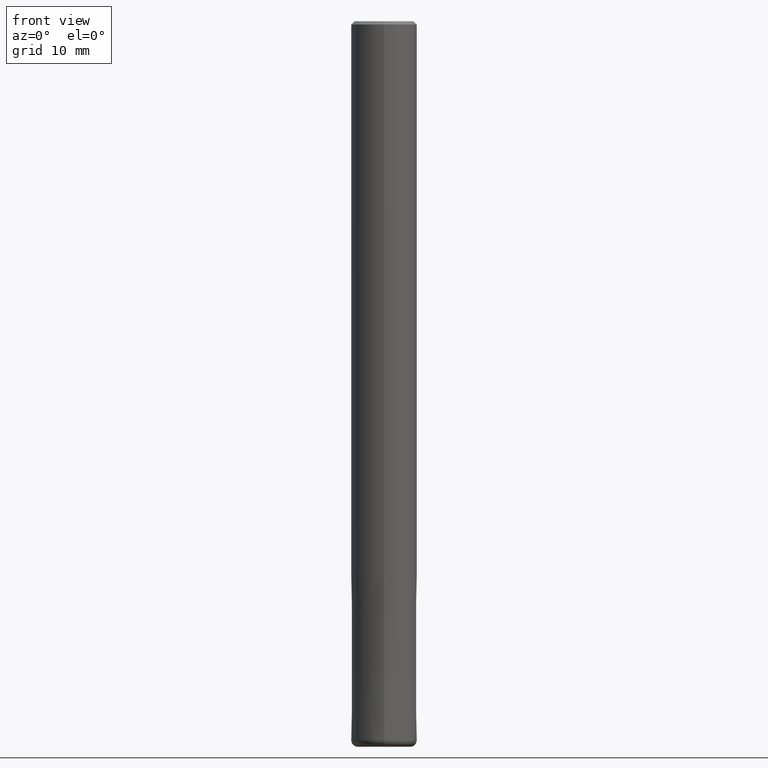
[diagram: clean part render]
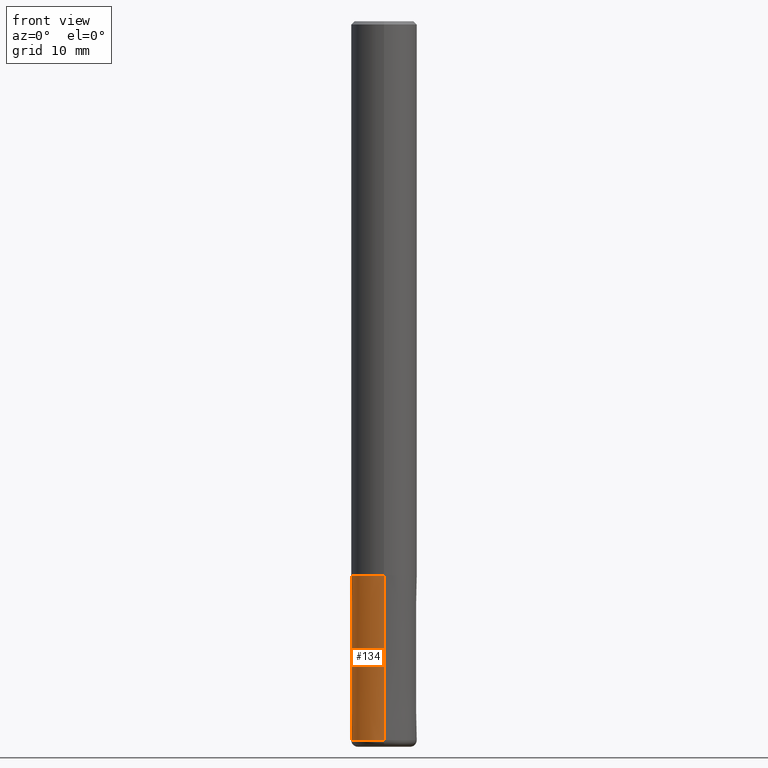
[diagram: same view with one face highlighted and labeled with its STEP entity id]
A machine part, front view. The second image highlights one B-rep face of the part: STEP entity #134.
In plain terms, the highlighted conical surface has half-angle 0 deg.
Its self-contained STEP definition (entity closure, byte-faithful):
#76=EDGE_CURVE('',#102,#94,#182,.T.);
#82=VERTEX_POINT('',#189);
#94=VERTEX_POINT('',#205);
#102=VERTEX_POINT('',#213);
#108=EDGE_CURVE('',#82,#94,#219,.T.);
#114=VERTEX_POINT('',#225);
#130=EDGE_CURVE('',#102,#114,#245,.T.);
#134=ADVANCED_FACE('',(#249),#250,.T.);
#146=EDGE_CURVE('',#114,#82,#262,.T.);
#182=CIRCLE('',#289,5.0);
#189=CARTESIAN_POINT('',(0.0,4.9999,-84.0));
#205=CARTESIAN_POINT('',(0.0,5.0,-109.0));
#213=CARTESIAN_POINT('',(6.12303176911188E-016,-5.0,-109.0));
#219=LINE('',#332,#333);
#225=CARTESIAN_POINT('',(6.1229093084765E-016,-4.9999,-84.0));
#245=LINE('',#368,#369);
#249=FACE_OUTER_BOUND('',#372,.T.);
#250=CONICAL_SURFACE('',#373,4.99995,3.99999999996934E-006);
#262=CIRCLE('',#390,4.9999);
#289=AXIS2_PLACEMENT_3D('',#419,#420,#421);
#332=CARTESIAN_POINT('',(-6.12297053879419E-016,4.99995,-96.5));
#333=VECTOR('',#468,1.0);
#368=CARTESIAN_POINT('',(6.12297053879419E-016,-4.99995,-96.5));
#369=VECTOR('',#507,1.0);
#372=EDGE_LOOP('',(#510,#511,#512,#513));
#373=AXIS2_PLACEMENT_3D('',#514,#515,#516);
#390=AXIS2_PLACEMENT_3D('',#524,#525,#526);
#419=CARTESIAN_POINT('',(0.0,0.0,-109.0));
#420=DIRECTION('',(0.0,0.0,-1.0));
#421=DIRECTION('',(0.0,1.0,0.0));
#468=DIRECTION('',(-4.8984254152389E-022,3.99999999995868E-006,-0.999999999992));
#507=DIRECTION('',(-4.8984254152389E-022,3.99999999995868E-006,0.999999999992));
#510=ORIENTED_EDGE('',*,*,#108,.T.);
#511=ORIENTED_EDGE('',*,*,#76,.F.);
#512=ORIENTED_EDGE('',*,*,#130,.T.);
#513=ORIENTED_EDGE('',*,*,#146,.T.);
#514=CARTESIAN_POINT('',(0.0,0.0,-96.5));
#515=DIRECTION('',(0.0,-0.0,-1.0));
#516=DIRECTION('',(0.0,1.0,0.0));
#524=CARTESIAN_POINT('',(0.0,0.0,-84.0));
#525=DIRECTION('',(0.0,0.0,-1.0));
#526=DIRECTION('',(0.0,1.0,0.0));